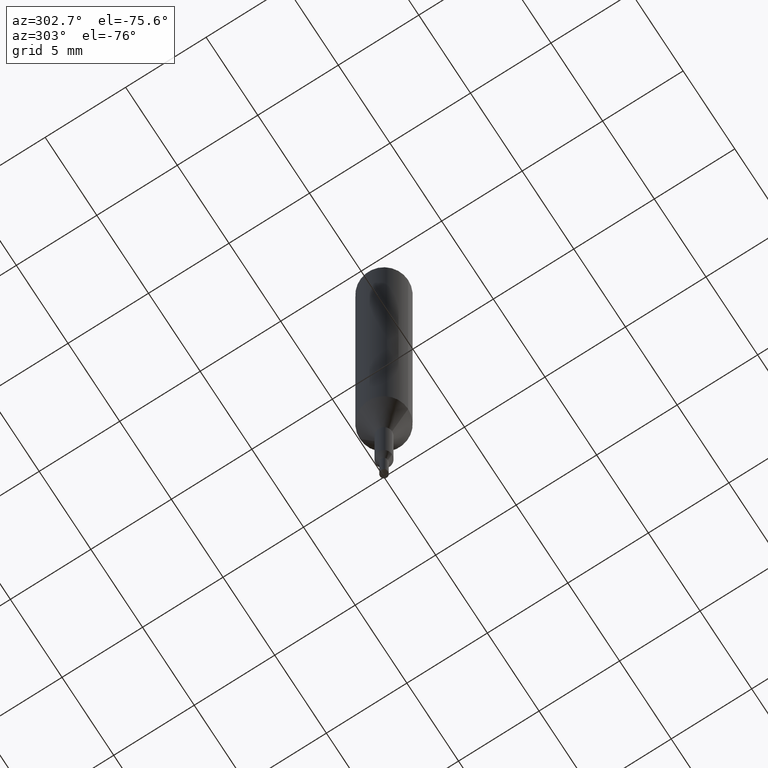
[diagram: clean part render]
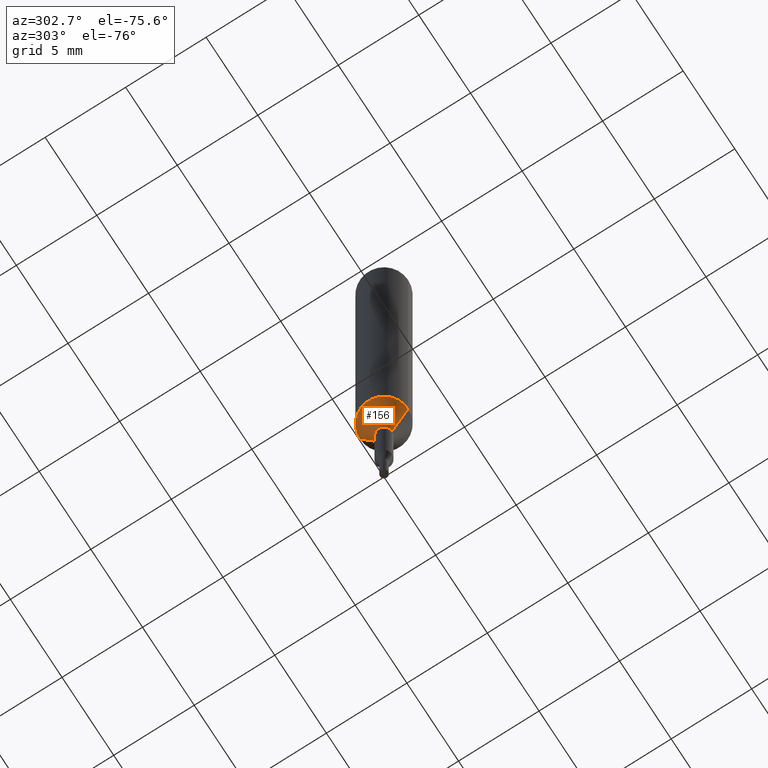
[diagram: same view with one face highlighted and labeled with its STEP entity id]
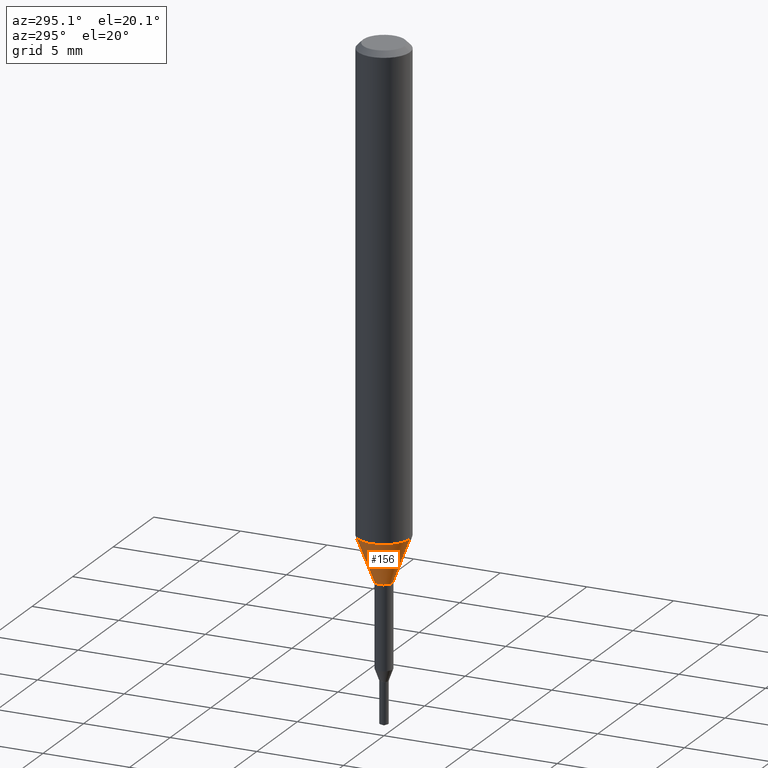
[diagram: same view with one face highlighted and labeled with its STEP entity id]
A machine part, auxiliary view. The second image highlights one B-rep face of the part: STEP entity #156.
A second angle (auxiliary view) of the same face is appended — the face is thin or edge-on in the first view.
In plain terms, the highlighted conical surface has half-angle 21.001 deg.
Its self-contained STEP definition (entity closure, byte-faithful):
#114=VERTEX_POINT('',#291);
#120=EDGE_CURVE('',#236,#172,#297,.T.);
#156=ADVANCED_FACE('',(#338),#339,.T.);
#158=VERTEX_POINT('',#341);
#172=VERTEX_POINT('',#356);
#178=EDGE_CURVE('',#114,#236,#363,.T.);
#214=EDGE_CURVE('',#114,#158,#403,.T.);
#236=VERTEX_POINT('',#426);
#262=EDGE_CURVE('',#172,#158,#458,.T.);
#291=CARTESIAN_POINT('',(6.12303176911189E-017,-0.5,-30.0));
#297=CIRCLE('',#491,1.5);
#338=FACE_OUTER_BOUND('',#535,.T.);
#339=CONICAL_SURFACE('',#536,1.0,0.366530581623394);
#341=CARTESIAN_POINT('',(0.0,0.5,-30.0));
#356=CARTESIAN_POINT('',(0.0,1.5,-27.395));
#363=LINE('',#570,#571);
#403=CIRCLE('',#627,0.5);
#426=CARTESIAN_POINT('',(1.83690953073357E-016,-1.5,-27.395));
#458=LINE('',#697,#698);
#491=AXIS2_PLACEMENT_3D('',#717,#718,#719);
#535=EDGE_LOOP('',(#771,#772,#773,#774));
#536=AXIS2_PLACEMENT_3D('',#775,#776,#777);
#570=CARTESIAN_POINT('',(1.22460635382238E-016,-1.0,-28.6975));
#571=VECTOR('',#800,1.0);
#627=AXIS2_PLACEMENT_3D('',#843,#844,#845);
#697=CARTESIAN_POINT('',(-1.22460635382238E-016,1.0,-28.6975));
#698=VECTOR('',#922,1.0);
#717=CARTESIAN_POINT('',(0.0,0.0,-27.395));
#718=DIRECTION('',(0.0,0.0,-1.0));
#719=DIRECTION('',(0.0,1.0,0.0));
#771=ORIENTED_EDGE('',*,*,#262,.T.);
#772=ORIENTED_EDGE('',*,*,#214,.F.);
#773=ORIENTED_EDGE('',*,*,#178,.T.);
#774=ORIENTED_EDGE('',*,*,#120,.T.);
#775=CARTESIAN_POINT('',(0.0,0.0,-28.6975));
#776=DIRECTION('',(-0.0,-0.0,1.0));
#777=DIRECTION('',(0.0,1.0,0.0));
#800=DIRECTION('',(4.38872745501645E-017,-0.35837862847256,0.933576327171018));
#843=CARTESIAN_POINT('',(0.0,0.0,-30.0));
#844=DIRECTION('',(0.0,0.0,-1.0));
#845=DIRECTION('',(0.0,1.0,0.0));
#922=DIRECTION('',(4.38872745501645E-017,-0.35837862847256,-0.933576327171018));